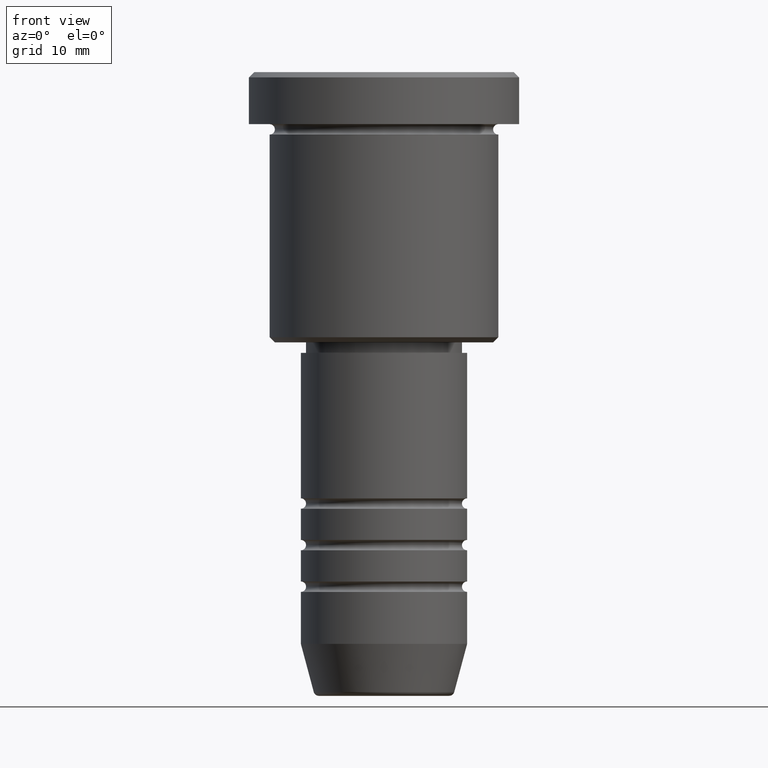
[diagram: clean part render]
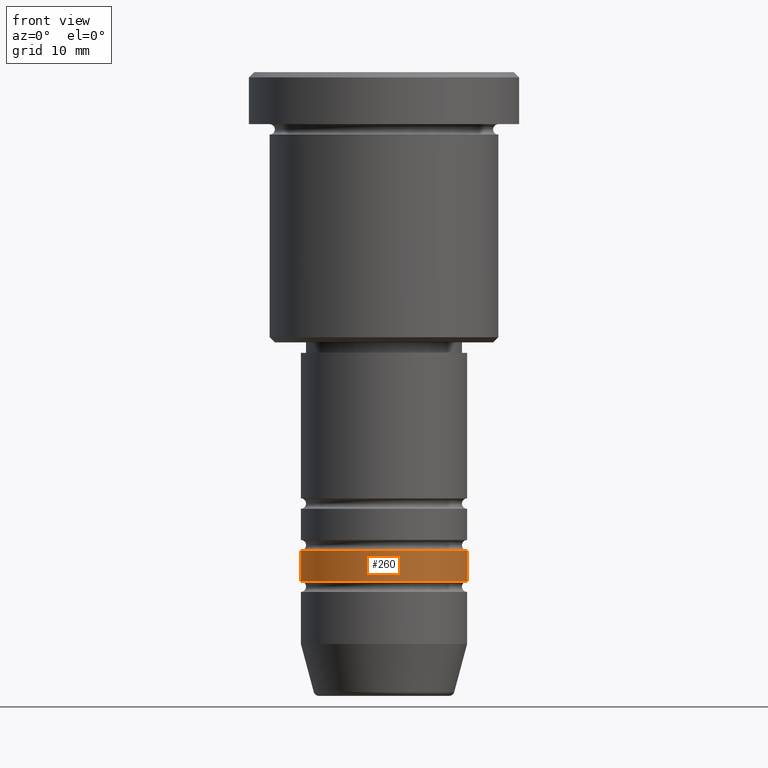
[diagram: same view with one face highlighted and labeled with its STEP entity id]
A machine part, front view. The second image highlights one B-rep face of the part: STEP entity #260.
In plain terms, the highlighted cylindrical surface (partial cylindrical patch) has radius 8 mm, axis along (-0, -0, 1).
Its self-contained STEP definition (entity closure, byte-faithful):
#96 = DIRECTION ( 'NONE',  ( -0.000000000000000000, -0.000000000000000000, 1.000000000000000000 ) ) ;
#104 = CIRCLE ( 'NONE', #735, 8.000000000000000000 ) ;
#107 = CARTESIAN_POINT ( 'NONE',  ( -8.000000000000000000, 9.797174393178825657E-16, -48.99999999999998579 ) ) ;
#108 = CARTESIAN_POINT ( 'NONE',  ( 0.000000000000000000, 0.000000000000000000, -48.99999999999998579 ) ) ;
#121 = AXIS2_PLACEMENT_3D ( 'NONE', #108, #813, #837 ) ;
#154 = CARTESIAN_POINT ( 'NONE',  ( 8.000000000000000000, 0.000000000000000000, -45.99999999999999289 ) ) ;
#171 = ORIENTED_EDGE ( 'NONE', *, *, #318, .F. ) ;
#215 = FACE_OUTER_BOUND ( 'NONE', #279, .T. ) ;
#243 = VERTEX_POINT ( 'NONE', #254 ) ;
#254 = CARTESIAN_POINT ( 'NONE',  ( 8.000000000000000000, 0.000000000000000000, -48.99999999999998579 ) ) ;
#260 = ADVANCED_FACE ( 'NONE', ( #215 ), #372, .T. ) ;
#277 = CARTESIAN_POINT ( 'NONE',  ( 8.000000000000000000, 0.000000000000000000, 0.000000000000000000 ) ) ;
#279 = EDGE_LOOP ( 'NONE', ( #171, #305, #765, #515 ) ) ;
#295 = EDGE_CURVE ( 'NONE', #243, #673, #1020, .T. ) ;
#305 = ORIENTED_EDGE ( 'NONE', *, *, #383, .T. ) ;
#318 = EDGE_CURVE ( 'NONE', #876, #820, #1015, .T. ) ;
#372 = CYLINDRICAL_SURFACE ( 'NONE', #927, 8.000000000000000000 ) ;
#383 = EDGE_CURVE ( 'NONE', #876, #243, #557, .T. ) ;
#449 = CARTESIAN_POINT ( 'NONE',  ( -8.000000000000000000, 9.797174393178825657E-16, 0.000000000000000000 ) ) ;
#482 = VECTOR ( 'NONE', #996, 1000.000000000000000 ) ;
#515 = ORIENTED_EDGE ( 'NONE', *, *, #763, .F. ) ;
#534 = CARTESIAN_POINT ( 'NONE',  ( 0.000000000000000000, 0.000000000000000000, -45.99999999999999289 ) ) ;
#557 = CIRCLE ( 'NONE', #121, 8.000000000000000000 ) ;
#650 = CARTESIAN_POINT ( 'NONE',  ( 0.000000000000000000, 0.000000000000000000, 0.000000000000000000 ) ) ;
#673 = VERTEX_POINT ( 'NONE', #154 ) ;
#733 = VECTOR ( 'NONE', #915, 1000.000000000000000 ) ;
#735 = AXIS2_PLACEMENT_3D ( 'NONE', #534, #1093, #1000 ) ;
#737 = DIRECTION ( 'NONE',  ( 1.000000000000000000, 0.000000000000000000, 0.000000000000000000 ) ) ;
#763 = EDGE_CURVE ( 'NONE', #820, #673, #104, .T. ) ;
#765 = ORIENTED_EDGE ( 'NONE', *, *, #295, .T. ) ;
#813 = DIRECTION ( 'NONE',  ( -0.000000000000000000, -0.000000000000000000, 1.000000000000000000 ) ) ;
#820 = VERTEX_POINT ( 'NONE', #905 ) ;
#837 = DIRECTION ( 'NONE',  ( 1.000000000000000000, 0.000000000000000000, 0.000000000000000000 ) ) ;
#876 = VERTEX_POINT ( 'NONE', #107 ) ;
#905 = CARTESIAN_POINT ( 'NONE',  ( -8.000000000000000000, 9.797174393178825657E-16, -45.99999999999999289 ) ) ;
#915 = DIRECTION ( 'NONE',  ( -0.000000000000000000, -0.000000000000000000, 1.000000000000000000 ) ) ;
#927 = AXIS2_PLACEMENT_3D ( 'NONE', #650, #96, #737 ) ;
#996 = DIRECTION ( 'NONE',  ( -0.000000000000000000, -0.000000000000000000, 1.000000000000000000 ) ) ;
#1000 = DIRECTION ( 'NONE',  ( 1.000000000000000000, 0.000000000000000000, 0.000000000000000000 ) ) ;
#1015 = LINE ( 'NONE', #449, #733 ) ;
#1020 = LINE ( 'NONE', #277, #482 ) ;
#1093 = DIRECTION ( 'NONE',  ( -0.000000000000000000, -0.000000000000000000, 1.000000000000000000 ) ) ;